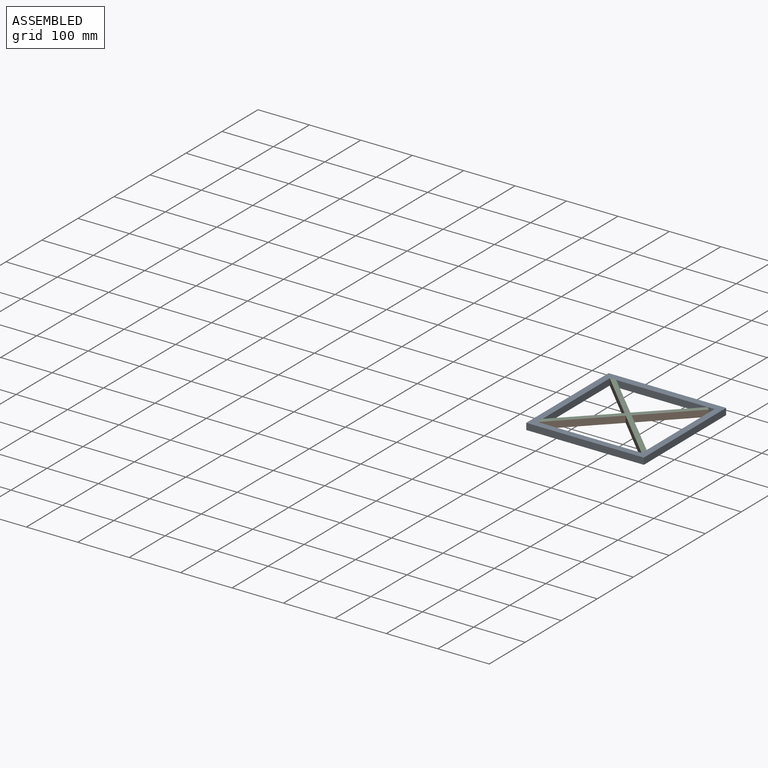
[diagram: assembled view]
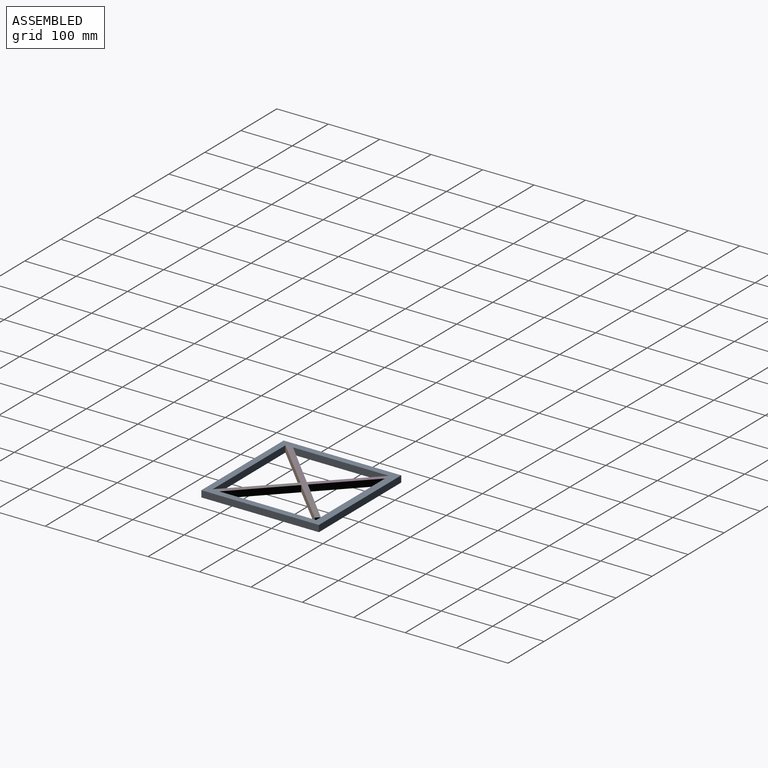
[diagram: assembled view, second angle]
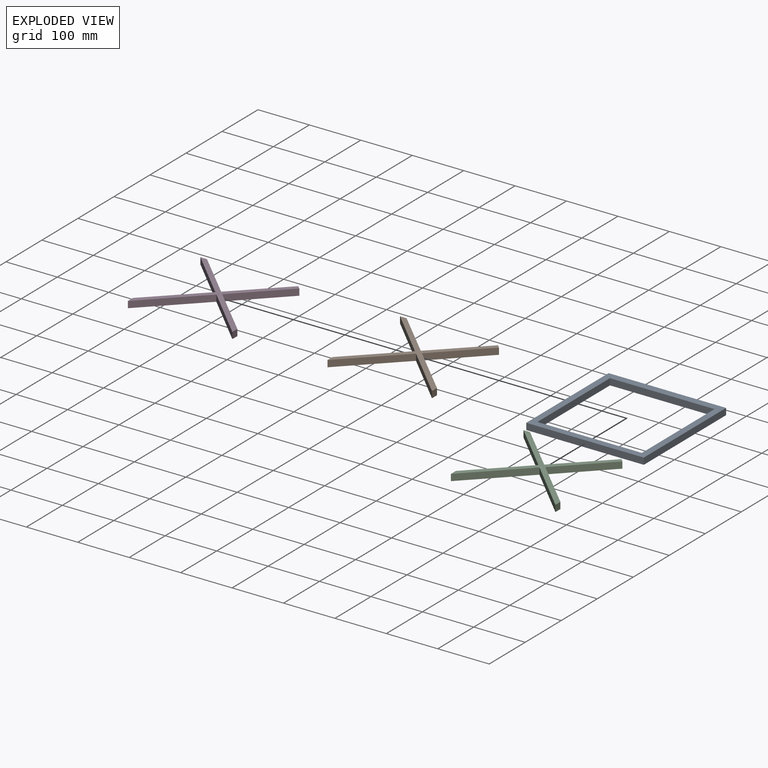
[diagram: exploded view]
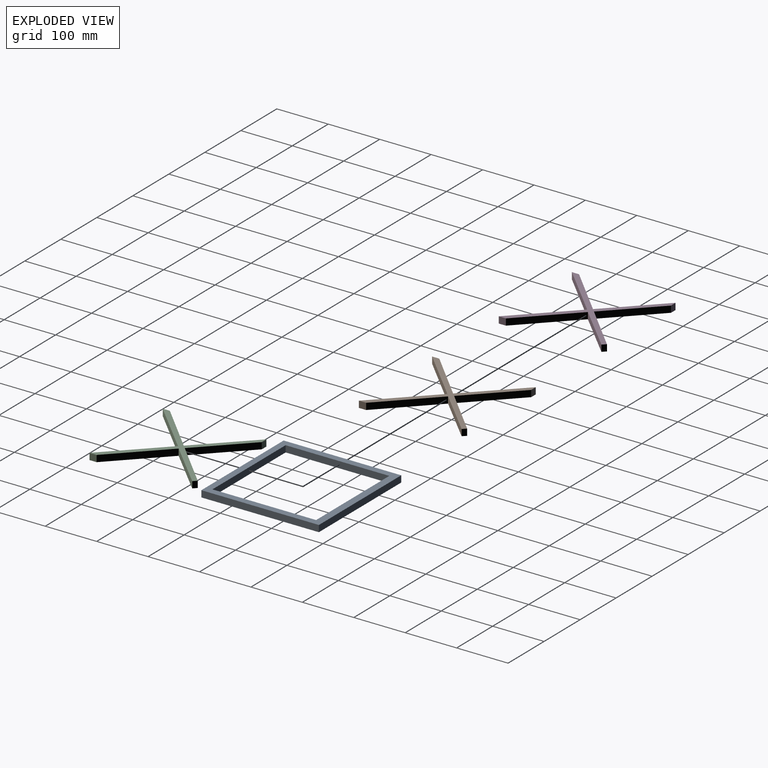
[diagram: exploded view, second angle]
ASSEMBLY  parts=4 mates=3
PART A: 12 faces, bbox 228.6x228.6x12.7 mm
  f0: plane 228.6x12.7mm, normal (1,0,0), area 2903.2mm2, adj f1,f9,f10,f11
  f1: plane 115.3x12.7mm, normal (0,1,0), area 1464.3mm2, adj f0,f2,f10,f11
  f2: plane 12.7x1mm, normal (0.12,-0.99,0), area 12.8mm2, adj f1,f3,f10,f11
  f3: plane 114.3x12.7mm, normal (0,1,0), area 1451.6mm2, adj f2,f4,f10,f11
  f4: plane 228.6x12.7mm, normal (-1,0,0), area 2903.2mm2, adj f3,f9,f10,f11
  f5: plane 203.21x12.7mm, normal (0,-1,0), area 2580.8mm2, adj f6,f8,f10,f11
  f6: plane 201.57x12.7mm, normal (-1,0,0), area 2560mm2, adj f5,f7,f10,f11
  f7: plane 203.21x12.7mm, normal (0,1,0), area 2580.8mm2, adj f6,f8,f10,f11
  f8: plane 201.57x12.7mm, normal (1,0,0), area 2560mm2, adj f5,f7,f10,f11
  f9: plane 228.6x12.7mm, normal (0,-1,0), area 2903.2mm2, adj f0,f4,f10,f11
  f10: plane 228.6x228.6mm, normal (0,0,1), area 11289.8mm2, adj f0,f1,f2,f3,f4,f5,f6,f7
  f11: plane 228.6x228.6mm, normal (0,0,-1), area 11289.8mm2, adj f0,f1,f2,f3,f4,f5,f6,f7
PART B: 14 faces, bbox 203.2x201.6x12.7 mm
  f0: plane 13.94x12.7mm, normal (-1,0,0), area 177mm2, adj f1,f11,f12,f13
  f1: plane 101.6x100.77mm, normal (0.7,-0.71,0), area 1817.4mm2, adj f0,f2,f12,f13
  f2: plane 101.61x100.79mm, normal (-0.7,-0.71,0), area 1817.6mm2, adj f1,f3,f12,f13
  f3: plane 13.94x12.7mm, normal (1,0,0), area 177mm2, adj f2,f4,f12,f13
  f4: plane 94.59x93.16mm, normal (0.7,0.71,0), area 1686.1mm2, adj f3,f5,f12,f13
  f5: plane 88.23x88.12mm, normal (0.71,-0.71,0), area 1583.7mm2, adj f4,f6,f12,f13
  f6: plane 12.7x6.35mm, normal (0.71,0.71,0), area 114mm2, adj f5,f7,f12,f13
  f7: plane 88.91x87.56mm, normal (-0.7,0.71,0), area 1584.7mm2, adj f6,f8,f12,f13
  f8: plane 88.9x87.56mm, normal (0.7,0.71,0), area 1584.7mm2, adj f7,f9,f12,f13
  f9: plane 12.7x12.7mm, normal (0,1,0), area 161.3mm2, adj f8,f10,f12,f13
  f10: plane 94.91x94.15mm, normal (-0.7,-0.71,0), area 1697.8mm2, adj f9,f11,f12,f13
  f11: plane 94.91x93.47mm, normal (-0.7,0.71,0), area 1691.8mm2, adj f0,f10,f12,f13
  f12: plane 203.21x201.57mm, normal (0,0,1), area 5117mm2, adj f0,f1,f2,f3,f4,f5,f6,f7
  f13: plane 203.21x201.57mm, normal (0,0,-1), area 5117mm2, adj f0,f1,f2,f3,f4,f5,f6,f7
PART C: same geometry as B
PART D: same geometry as B
PLACE A at identity
PLACE B t=(0,-0.63,0)mm
PLACE C t=(-0.51,0,0)mm
PLACE D t=(0,-0.62,0)mm
MATE fastened B.f0 <-> A.f8  axis (-1,0,0) through (-138.7,-133.35,6.35)mm
MATE fastened C.f9 <-> A.f5  axis (0,1,0) through (-132.86,61.87,6.35)mm
MATE fastened D.f3 <-> A.f6  axis (1,0,0) through (64.51,-133.35,6.35)mm
